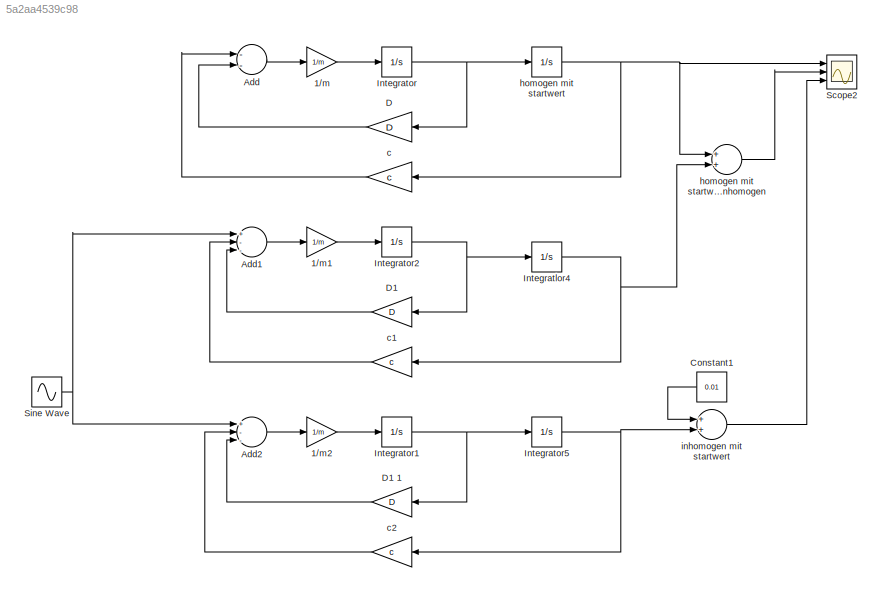
MODEL slx_5a2aa4539c98
KIND model
CONFIG AbsTol = auto
CONFIG FixedStep = auto
CONFIG MaxStep = 0.01
CONFIG MinStep = auto
CONFIG RelTol = 1e-3
CONFIG SampleTimeConstraint = Unconstrained
CONFIG Solver = VariableStepAuto
CONFIG SolverMode = Auto
CONFIG SolverName = VariableStepAuto
CONFIG StartTime = 0.0
CONFIG StopTime = 20
BLOCK [Gain] 1//m
  Gain = 1/m
  OutDataTypeStr = Inherit: Inherit via internal rule
  ParamDataTypeStr = Inherit: Inherit via internal rule
  SaturateOnIntegerOverflow = off
BLOCK [Gain] 1//m1
  Gain = 1/m
  OutDataTypeStr = Inherit: Inherit via internal rule
  ParamDataTypeStr = Inherit: Inherit via internal rule
  SaturateOnIntegerOverflow = off
BLOCK [Gain] 1//m2
  Gain = 1/m
  OutDataTypeStr = Inherit: Inherit via internal rule
  ParamDataTypeStr = Inherit: Inherit via internal rule
  SaturateOnIntegerOverflow = off
BLOCK [Sum] Add
  InputSameDT = off
  Inputs = --
  OutDataTypeStr = Inherit: Inherit via internal rule
  Ports = [2, 1]
  SaturateOnIntegerOverflow = off
BLOCK [Sum] Add1
  InputSameDT = off
  Inputs = +--
  OutDataTypeStr = Inherit: Inherit via internal rule
  Ports = [3, 1]
  SaturateOnIntegerOverflow = off
BLOCK [Sum] Add2
  InputSameDT = off
  Inputs = +--
  OutDataTypeStr = Inherit: Inherit via internal rule
  Ports = [3, 1]
  SaturateOnIntegerOverflow = off
BLOCK [Constant] Constant1
  Value = 0.01
BLOCK [Gain] D	
  Gain = D
  OutDataTypeStr = Inherit: Inherit via internal rule
  ParamDataTypeStr = Inherit: Inherit via internal rule
  SaturateOnIntegerOverflow = off
BLOCK [Gain] D1	
  Gain = D
  OutDataTypeStr = Inherit: Inherit via internal rule
  ParamDataTypeStr = Inherit: Inherit via internal rule
  SaturateOnIntegerOverflow = off
BLOCK [Gain] D1	1
  Gain = D
  OutDataTypeStr = Inherit: Inherit via internal rule
  ParamDataTypeStr = Inherit: Inherit via internal rule
  SaturateOnIntegerOverflow = off
BLOCK [Integrator] Integratlor4
  Ports = [1, 1]
BLOCK [Integrator] Integrator
  Ports = [1, 1]
BLOCK [Integrator] Integrator1
  Ports = [1, 1]
BLOCK [Integrator] Integrator2
  Ports = [1, 1]
BLOCK [Integrator] Integrator5
  InitialCondition = y0
  Ports = [1, 1]
BLOCK [Scope] Scope2
  NumInputPorts = 3
  Ports = [3]
  ScopeSpecificationString = Simulink.scopes.TimeScopeBlockCfg('CurrentConfiguration', extmgr.ConfigurationSet(extmgr.Configuration('Core','General UI',true,'FigureColor',[1 1 1]),extmgr.Configuration('Core','Source UI',true),extmgr.Configuration('Sources','WiredSimulink',true,'DataLoggingVariableName','ScopeData2'),extmgr.Configuration('Visuals','Time Domain',true,'SerializedDisplays',{struct('MinYLimReal','-1.12232','MaxYLi...<+1831ch>
BLOCK [Sin] Sine Wave
  Amplitude = 10
  Frequency = 5
  Phase = pi/2
  Ports = [0, 1]
  SampleTime = 0
BLOCK [Gain] c
  Gain = c
  OutDataTypeStr = Inherit: Inherit via internal rule
  ParamDataTypeStr = Inherit: Inherit via internal rule
  SaturateOnIntegerOverflow = off
BLOCK [Gain] c1
  Gain = c
  OutDataTypeStr = Inherit: Inherit via internal rule
  ParamDataTypeStr = Inherit: Inherit via internal rule
  SaturateOnIntegerOverflow = off
BLOCK [Gain] c2
  Gain = c
  OutDataTypeStr = Inherit: Inherit via internal rule
  ParamDataTypeStr = Inherit: Inherit via internal rule
  SaturateOnIntegerOverflow = off
BLOCK [Integrator] homogen mit startwert
  InitialCondition = y0
  Ports = [1, 1]
BLOCK [Sum] homogen mit startwert + inhomogen
  InputSameDT = off
  OutDataTypeStr = Inherit: Inherit via internal rule
  Ports = [2, 1]
  SaturateOnIntegerOverflow = off
BLOCK [Sum] inhomogen mit startwert
  InputSameDT = off
  OutDataTypeStr = Inherit: Inherit via internal rule
  Ports = [2, 1]
  SaturateOnIntegerOverflow = off
LINE 1//m1:1 -> Integrator2:1
LINE 1//m2:1 -> Integrator1:1
LINE 1//m:1 -> Integrator:1
LINE Add1:1 -> 1//m1:1
LINE Add2:1 -> 1//m2:1
LINE Add:1 -> 1//m:1
LINE Constant1:1 -> inhomogen mit startwert:1
LINE D	:1 -> Add:2
LINE D1	1:1 -> Add2:3
LINE D1	:1 -> Add1:3
NET Integratlor4:1 -> c1:1, homogen mit startwert + inhomogen:2
NET Integrator1:1 -> D1	1:1, Integrator5:1
NET Integrator2:1 -> D1	:1, Integratlor4:1
NET Integrator5:1 -> c2:1, inhomogen mit startwert:2
NET Integrator:1 -> D	:1, homogen mit startwert:1
NET Sine Wave:1 -> Add1:1, Add2:1
LINE c1:1 -> Add1:2
LINE c2:1 -> Add2:2
LINE c:1 -> Add:1
LINE homogen mit startwert + inhomogen:1 -> Scope2:2
NET homogen mit startwert:1 -> Scope2:1, c:1, homogen mit startwert + inhomogen:1
LINE inhomogen mit startwert:1 -> Scope2:3
note: NET lines group one-source signal fan-out (src -> all destinations, sorted); 1:1 wires keep LINE
